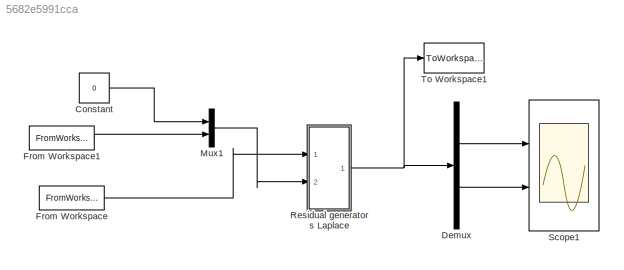
MODEL slx_5682e5991cca
KIND model
CONFIG AbsTol = auto
CONFIG EnableMultiTasking = off
CONFIG FixedStep = auto
CONFIG MaxStep = auto
CONFIG MinStep = auto
CONFIG RelTol = 1e-8
CONFIG SampleTimeConstraint = Unconstrained
CONFIG Solver = VariableStepAuto
CONFIG SolverName = VariableStepAuto
CONFIG StartTime = 0.0
CONFIG StopTime = simTime
BLOCK [Constant] Constant
  Value = 0
BLOCK [Demux] Demux
  Outputs = 2
  Ports = [1, 2]
BLOCK [FromWorkspace] From Workspace
  SampleTime = T_s
  VariableName = y_ex
BLOCK [FromWorkspace] From Workspace1
  SampleTime = T_s
  VariableName = u_ex
BLOCK [Mux] Mux1
  DisplayOption = bar
  Inputs = 2
  Ports = [2, 1]
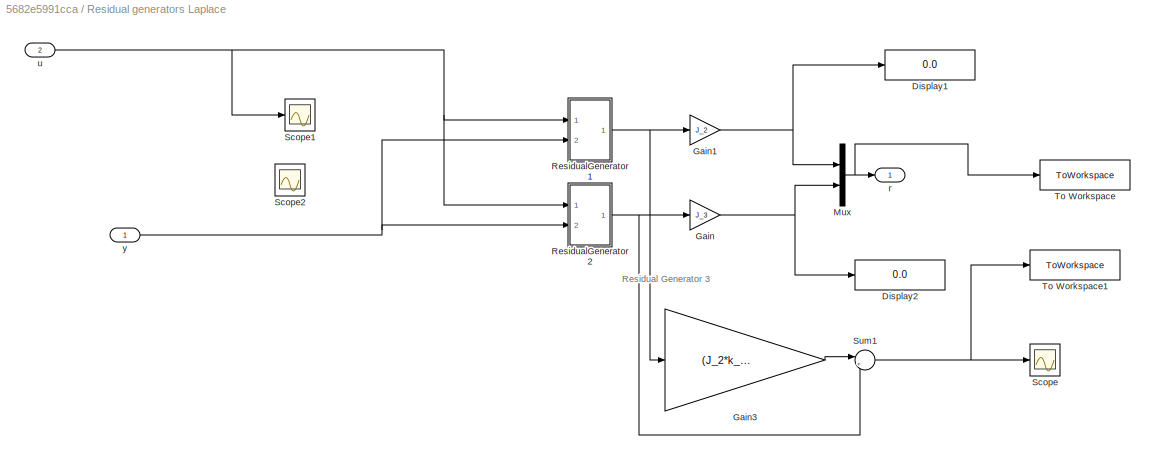
BLOCK [SubSystem] Residual generators Laplace
  Ports = [2, 1]
  RequestExecContextInheritance = off
BLOCK [Display] Residual generators Laplace/Display1
  Decimation = 1
  Ports = [1]
BLOCK [Display] Residual generators Laplace/Display2
  Decimation = 1
  Ports = [1]
BLOCK [Gain] Residual generators Laplace/Gain
  Gain = J_3
BLOCK [Gain] Residual generators Laplace/Gain1
  Gain = J_2
BLOCK [Gain] Residual generators Laplace/Gain3
  Gain = (J_2*k_2)/(J_3*k_1+J_3*k_2)
BLOCK [Mux] Residual generators Laplace/Mux
  DisplayOption = bar
  Inputs = 2
  Ports = [2, 1]
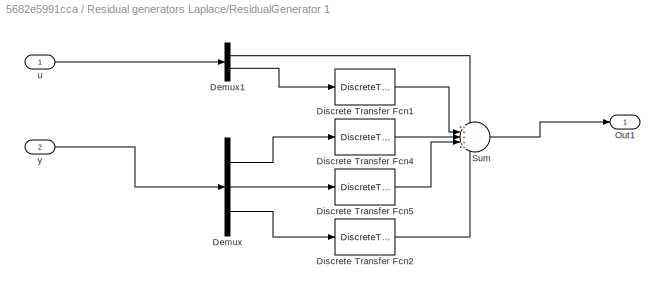
BLOCK [SubSystem] Residual generators Laplace/ResidualGenerator 1
  Ports = [2, 1]
  RequestExecContextInheritance = off
BLOCK [Demux] Residual generators Laplace/ResidualGenerator 1/Demux
  Outputs = 3
  Ports = [1, 3]
BLOCK [Demux] Residual generators Laplace/ResidualGenerator 1/Demux1
  Outputs = 2
  Ports = [1, 2]
BLOCK [DiscreteTransferFcn] Residual generators Laplace/ResidualGenerator 1/Discrete Transfer Fcn1
  Denominator = den12
  InputPortMap = u0
  Numerator = num12
  Ports = [1, 1]
BLOCK [DiscreteTransferFcn] Residual generators Laplace/ResidualGenerator 1/Discrete Transfer Fcn2
  Denominator = den15
  InputPortMap = u0
  Numerator = num15
  Ports = [1, 1]
BLOCK [DiscreteTransferFcn] Residual generators Laplace/ResidualGenerator 1/Discrete Transfer Fcn4
  Denominator = den13
  InputPortMap = u0
  Numerator = num13
  Ports = [1, 1]
BLOCK [DiscreteTransferFcn] Residual generators Laplace/ResidualGenerator 1/Discrete Transfer Fcn5
  Denominator = den14
  InputPortMap = u0
  Numerator = num14
  Ports = [1, 1]
BLOCK [Outport] Residual generators Laplace/ResidualGenerator 1/Out1
BLOCK [Sum] Residual generators Laplace/ResidualGenerator 1/Sum
  Inputs = +++++
  Ports = [5, 1]
BLOCK [Inport] Residual generators Laplace/ResidualGenerator 1/u
BLOCK [Inport] Residual generators Laplace/ResidualGenerator 1/y
  Port = 2
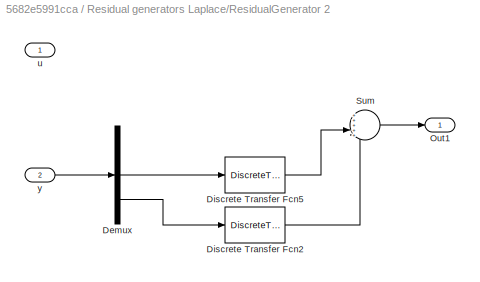
BLOCK [SubSystem] Residual generators Laplace/ResidualGenerator 2
  Ports = [2, 1]
  RequestExecContextInheritance = off
BLOCK [Demux] Residual generators Laplace/ResidualGenerator 2/Demux
  Outputs = 3
  Ports = [1, 3]
BLOCK [DiscreteTransferFcn] Residual generators Laplace/ResidualGenerator 2/Discrete Transfer Fcn2
  Denominator = den25
  InputPortMap = u0
  Numerator = num25
  Ports = [1, 1]
BLOCK [DiscreteTransferFcn] Residual generators Laplace/ResidualGenerator 2/Discrete Transfer Fcn5
  Denominator = den24
  InputPortMap = u0
  Numerator = num24
  Ports = [1, 1]
BLOCK [Outport] Residual generators Laplace/ResidualGenerator 2/Out1
BLOCK [Sum] Residual generators Laplace/ResidualGenerator 2/Sum
  Inputs = +++++
  Ports = [5, 1]
BLOCK [Inport] Residual generators Laplace/ResidualGenerator 2/u
BLOCK [Inport] Residual generators Laplace/ResidualGenerator 2/y
  Port = 2
BLOCK [Scope] Residual generators Laplace/Scope
  Floating = off
  NumInputPorts = 1
  Ports = [1]
  ScopeSpecificationString = Simulink.scopes.TimeScopeBlockCfg('CurrentConfiguration', extmgr.ConfigurationSet(extmgr.Configuration('Core','General UI',true),extmgr.Configuration('Core','Source UI',true),extmgr.Configuration('Sources','WiredSimulink',true,'DataLoggingVariableName','ScopeData3'),extmgr.Configuration('Visuals','Time Domain',true,'SerializedDisplays',{struct('MinYLimReal','-34.07561','MaxYLimReal','23.30211','YL...<+1391ch>
BLOCK [Scope] Residual generators Laplace/Scope1
  Floating = off
  NumInputPorts = 1
  Ports = [1]
  ScopeSpecificationString = Simulink.scopes.TimeScopeBlockCfg('CurrentConfiguration', extmgr.ConfigurationSet(extmgr.Configuration('Core','General UI',true),extmgr.Configuration('Core','Source UI',true),extmgr.Configuration('Sources','WiredSimulink',true,'DataLoggingVariableName','ScopeData1'),extmgr.Configuration('Visuals','Time Domain',true,'SerializedDisplays',{struct('MinYLimReal','-0.99244','MaxYLimReal','0.9227','YLabe...<+1410ch>
BLOCK [Scope] Residual generators Laplace/Scope2
  Floating = off
  NumInputPorts = 1
  Ports = [1]
  ScopeSpecificationString = Simulink.scopes.TimeScopeBlockCfg('CurrentConfiguration', extmgr.ConfigurationSet(extmgr.Configuration('Core','General UI',true),extmgr.Configuration('Core','Source UI',true),extmgr.Configuration('Sources','WiredSimulink',true,'DataLoggingVariableName','ScopeData2'),extmgr.Configuration('Visuals','Time Domain',true,'SerializedDisplays',{struct('MinYLimReal','-1.00000','MaxYLimReal','1.00000','YLab...<+1428ch>
BLOCK [Sum] Residual generators Laplace/Sum1
  Inputs = |++
  Ports = [2, 1]
BLOCK [ToWorkspace] Residual generators Laplace/To Workspace
  FixptAsFi = on
  MaxDataPoints = inf
  Ports = [1]
  SampleTime = -1
  SaveFormat = Timeseries
  VariableName = RG_1_2
BLOCK [ToWorkspace] Residual generators Laplace/To Workspace1
  FixptAsFi = on
  MaxDataPoints = inf
  Ports = [1]
  SampleTime = -1
  SaveFormat = Timeseries
  VariableName = RG3
BLOCK [Outport] Residual generators Laplace/r
  VectorParamsAs1DForOutWhenUnconnected = off
BLOCK [Inport] Residual generators Laplace/u
  Port = 2
BLOCK [Inport] Residual generators Laplace/y
BLOCK [Scope] Scope1
  Floating = off
  NumInputPorts = 2
  Ports = [2]
  ScopeSpecificationString = Simulink.scopes.TimeScopeBlockCfg('CurrentConfiguration', extmgr.ConfigurationSet(extmgr.Configuration('Core','General UI',true),extmgr.Configuration('Core','Source UI',true),extmgr.Configuration('Sources','WiredSimulink',true,'SampleTime','T_s','DataLoggingVariableName','ScopeData4'),extmgr.Configuration('Visuals','Time Domain',true,'SerializedDisplays',{struct('MinYLimReal','-0.11349','MaxYLimRe...<+2294ch>
BLOCK [ToWorkspace] To Workspace1
  FixptAsFi = on
  MaxDataPoints = inf
  Ports = [1]
  SampleTime = T_s
  SaveFormat = Timeseries
  VariableName = r
ANNOTATION Residual generators Laplace: Residual Generator 3
LINE Constant:1 -> Mux1:1
LINE Demux:1 -> Scope1:1
LINE Demux:2 -> Scope1:2
LINE From Workspace1:1 -> Mux1:2
LINE From Workspace:1 -> Residual generators Laplace:1
LINE Mux1:1 -> Residual generators Laplace:2
NET Residual generators Laplace/Gain1:1 -> Residual generators Laplace/Display1:1, Residual generators Laplace/Mux:1
LINE Residual generators Laplace/Gain3:1 -> Residual generators Laplace/Sum1:1
NET Residual generators Laplace/Gain:1 -> Residual generators Laplace/Display2:1, Residual generators Laplace/Mux:2
NET Residual generators Laplace/Mux:1 -> Residual generators Laplace/To Workspace:1, Residual generators Laplace/r:1
LINE Residual generators Laplace/ResidualGenerator 1/Demux1:1 -> Residual generators Laplace/ResidualGenerator 1/Sum:1
LINE Residual generators Laplace/ResidualGenerator 1/Demux1:2 -> Residual generators Laplace/ResidualGenerator 1/Discrete Transfer Fcn1:1
LINE Residual generators Laplace/ResidualGenerator 1/Demux:1 -> Residual generators Laplace/ResidualGenerator 1/Discrete Transfer Fcn4:1
LINE Residual generators Laplace/ResidualGenerator 1/Demux:2 -> Residual generators Laplace/ResidualGenerator 1/Discrete Transfer Fcn5:1
LINE Residual generators Laplace/ResidualGenerator 1/Demux:3 -> Residual generators Laplace/ResidualGenerator 1/Discrete Transfer Fcn2:1
LINE Residual generators Laplace/ResidualGenerator 1/Discrete Transfer Fcn1:1 -> Residual generators Laplace/ResidualGenerator 1/Sum:2
LINE Residual generators Laplace/ResidualGenerator 1/Discrete Transfer Fcn2:1 -> Residual generators Laplace/ResidualGenerator 1/Sum:5
LINE Residual generators Laplace/ResidualGenerator 1/Discrete Transfer Fcn4:1 -> Residual generators Laplace/ResidualGenerator 1/Sum:3
LINE Residual generators Laplace/ResidualGenerator 1/Discrete Transfer Fcn5:1 -> Residual generators Laplace/ResidualGenerator 1/Sum:4
LINE Residual generators Laplace/ResidualGenerator 1/Sum:1 -> Residual generators Laplace/ResidualGenerator 1/Out1:1
LINE Residual generators Laplace/ResidualGenerator 1/u:1 -> Residual generators Laplace/ResidualGenerator 1/Demux1:1
LINE Residual generators Laplace/ResidualGenerator 1/y:1 -> Residual generators Laplace/ResidualGenerator 1/Demux:1
NET Residual generators Laplace/ResidualGenerator 1:1 -> Residual generators Laplace/Gain1:1, Residual generators Laplace/Gain3:1
LINE Residual generators Laplace/ResidualGenerator 2/Demux:2 -> Residual generators Laplace/ResidualGenerator 2/Discrete Transfer Fcn5:1
LINE Residual generators Laplace/ResidualGenerator 2/Demux:3 -> Residual generators Laplace/ResidualGenerator 2/Discrete Transfer Fcn2:1
LINE Residual generators Laplace/ResidualGenerator 2/Discrete Transfer Fcn2:1 -> Residual generators Laplace/ResidualGenerator 2/Sum:5
LINE Residual generators Laplace/ResidualGenerator 2/Discrete Transfer Fcn5:1 -> Residual generators Laplace/ResidualGenerator 2/Sum:4
LINE Residual generators Laplace/ResidualGenerator 2/Sum:1 -> Residual generators Laplace/ResidualGenerator 2/Out1:1
LINE Residual generators Laplace/ResidualGenerator 2/y:1 -> Residual generators Laplace/ResidualGenerator 2/Demux:1
NET Residual generators Laplace/ResidualGenerator 2:1 -> Residual generators Laplace/Gain:1, Residual generators Laplace/Sum1:2
NET Residual generators Laplace/Sum1:1 -> Residual generators Laplace/Scope:1, Residual generators Laplace/To Workspace1:1
NET Residual generators Laplace/u:1 -> Residual generators Laplace/ResidualGenerator 1:1, Residual generators Laplace/ResidualGenerator 2:1, Residual generators Laplace/Scope1:1
NET Residual generators Laplace/y:1 -> Residual generators Laplace/ResidualGenerator 1:2, Residual generators Laplace/ResidualGenerator 2:2
NET Residual generators Laplace:1 -> Demux:1, To Workspace1:1
note: NET lines group one-source signal fan-out (src -> all destinations, sorted); 1:1 wires keep LINE
